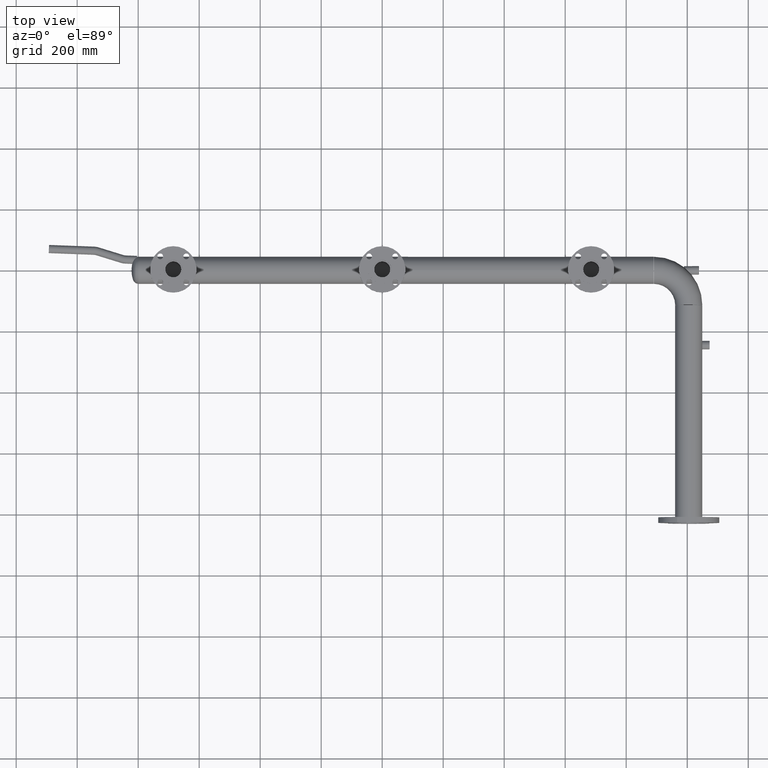
[diagram: clean part render]
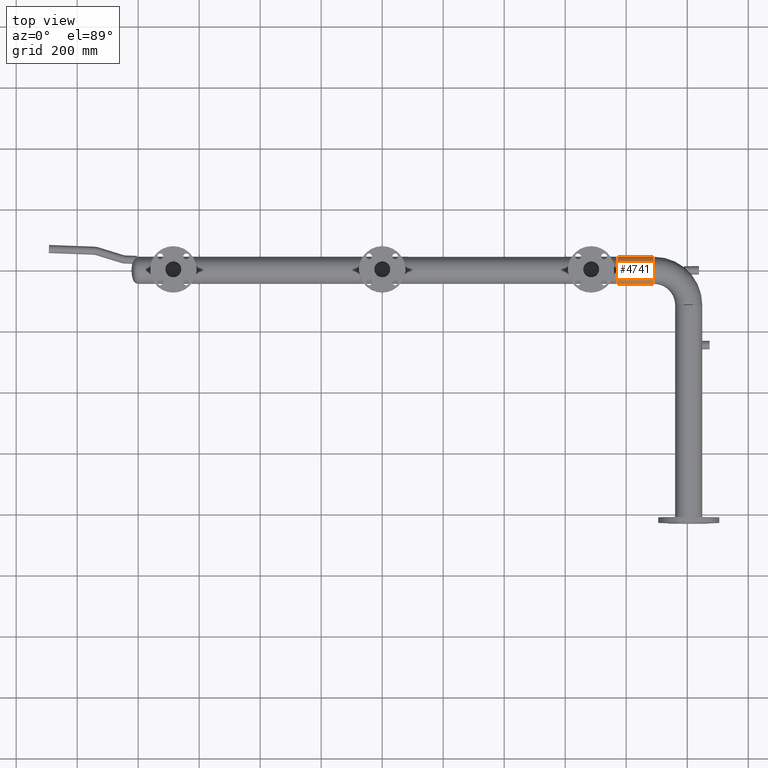
[diagram: same view with one face highlighted and labeled with its STEP entity id]
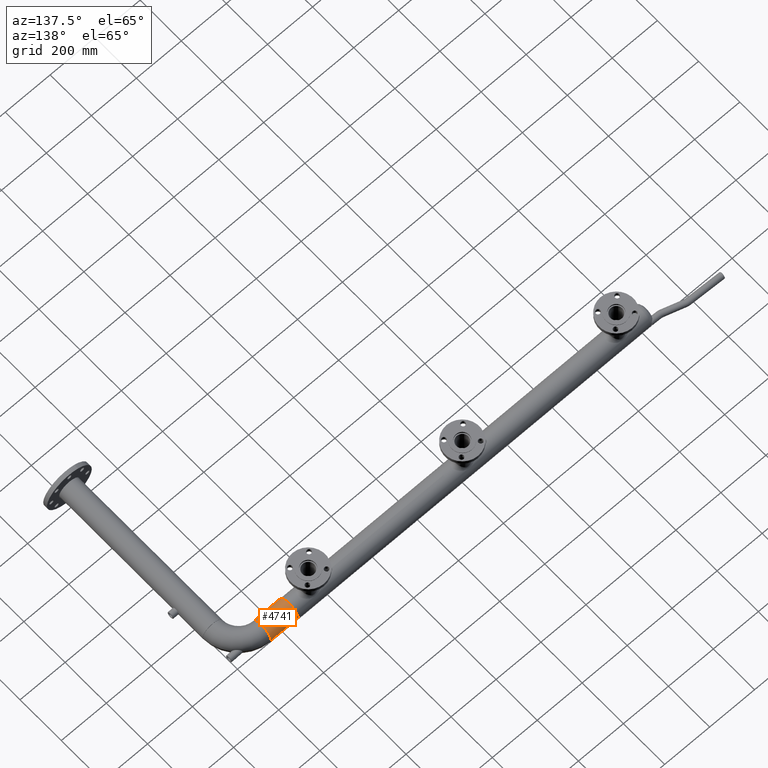
[diagram: same view with one face highlighted and labeled with its STEP entity id]
A machine part, top view. The second image highlights one B-rep face of the part: STEP entity #4741.
A second angle (auxiliary view) of the same face is appended — the face is thin or edge-on in the first view.
In plain terms, the highlighted cylindrical surface (edge-blend (fillet) strip) has radius 44.45 mm, axis along (1, 0, 0).
Its self-contained STEP definition (entity closure, byte-faithful):
#39 = DIRECTION ( 'NONE',  ( 0.000000000000000000, 1.000000000000000000, 0.000000000000000000 ) ) ;
#139 = EDGE_CURVE ( 'NONE', #1395, #3823, #3655, .T. ) ;
#215 = ORIENTED_EDGE ( 'NONE', *, *, #3283, .F. ) ;
#409 = ORIENTED_EDGE ( 'NONE', *, *, #139, .T. ) ;
#556 = CARTESIAN_POINT ( 'NONE',  ( 770.7000000000000455, -3.148566920607844824E-14, 0.000000000000000000 ) ) ;
#706 = CARTESIAN_POINT ( 'NONE',  ( 770.7000000000000455, 44.44999999999997442, 0.000000000000000000 ) ) ;
#944 = CARTESIAN_POINT ( 'NONE',  ( 890.5000000000001137, 44.45000000000000995, 0.000000000000000000 ) ) ;
#1208 = AXIS2_PLACEMENT_3D ( 'NONE', #556, #6640, #39 ) ;
#1395 = VERTEX_POINT ( 'NONE', #3889 ) ;
#1514 = CARTESIAN_POINT ( 'NONE',  ( 890.5000000000001137, -44.45000000000000995, 5.443555022209986486E-15 ) ) ;
#1690 = DIRECTION ( 'NONE',  ( 1.000000000000000000, 2.628186077302040120E-16, -0.000000000000000000 ) ) ;
#1719 = VERTEX_POINT ( 'NONE', #944 ) ;
#1918 = VERTEX_POINT ( 'NONE', #6724 ) ;
#2141 = CARTESIAN_POINT ( 'NONE',  ( 770.7000000000000455, -3.148566920607844824E-14, 0.000000000000000000 ) ) ;
#2250 = VECTOR ( 'NONE', #3688, 1000.000000000000000 ) ;
#2602 = CYLINDRICAL_SURFACE ( 'NONE', #1208, 44.45000000000000995 ) ;
#2619 = AXIS2_PLACEMENT_3D ( 'NONE', #2141, #3650, #6154 ) ;
#2640 = FACE_OUTER_BOUND ( 'NONE', #5074, .T. ) ;
#2811 = ORIENTED_EDGE ( 'NONE', *, *, #5583, .T. ) ;
#3147 = CARTESIAN_POINT ( 'NONE',  ( 770.7000000000000455, -44.45000000000004547, 5.443555022209986486E-15 ) ) ;
#3283 = EDGE_CURVE ( 'NONE', #1395, #1918, #4251, .T. ) ;
#3650 = DIRECTION ( 'NONE',  ( -1.000000000000000000, -1.361513478024022519E-17, 0.000000000000000000 ) ) ;
#3655 = LINE ( 'NONE', #3147, #2250 ) ;
#3688 = DIRECTION ( 'NONE',  ( 1.000000000000000000, 2.628186077302040120E-16, -0.000000000000000000 ) ) ;
#3823 = VERTEX_POINT ( 'NONE', #1514 ) ;
#3889 = CARTESIAN_POINT ( 'NONE',  ( 770.7000000000000455, -44.45000000000003837, 5.443555022209988064E-15 ) ) ;
#4180 = DIRECTION ( 'NONE',  ( 0.000000000000000000, -1.000000000000000000, 0.000000000000000000 ) ) ;
#4251 = CIRCLE ( 'NONE', #2619, 44.45000000000000995 ) ;
#4597 = CARTESIAN_POINT ( 'NONE',  ( 890.5000000000001137, 0.000000000000000000, 0.000000000000000000 ) ) ;
#4741 = ADVANCED_FACE ( 'NONE', ( #2640 ), #2602, .T. ) ;
#5074 = EDGE_LOOP ( 'NONE', ( #215, #409, #2811, #6562 ) ) ;
#5141 = CIRCLE ( 'NONE', #6010, 44.45000000000000995 ) ;
#5583 = EDGE_CURVE ( 'NONE', #3823, #1719, #5141, .T. ) ;
#5689 = DIRECTION ( 'NONE',  ( -1.000000000000000000, -1.361513478024022519E-17, 0.000000000000000000 ) ) ;
#5930 = VECTOR ( 'NONE', #1690, 1000.000000000000000 ) ;
#6010 = AXIS2_PLACEMENT_3D ( 'NONE', #4597, #5689, #4180 ) ;
#6154 = DIRECTION ( 'NONE',  ( 0.000000000000000000, -1.000000000000000000, 0.000000000000000000 ) ) ;
#6346 = LINE ( 'NONE', #706, #5930 ) ;
#6475 = EDGE_CURVE ( 'NONE', #1918, #1719, #6346, .T. ) ;
#6562 = ORIENTED_EDGE ( 'NONE', *, *, #6475, .F. ) ;
#6640 = DIRECTION ( 'NONE',  ( 1.000000000000000000, 2.628186077302040120E-16, -0.000000000000000000 ) ) ;
#6724 = CARTESIAN_POINT ( 'NONE',  ( 770.7000000000000455, 44.44999999999997442, 0.000000000000000000 ) ) ;